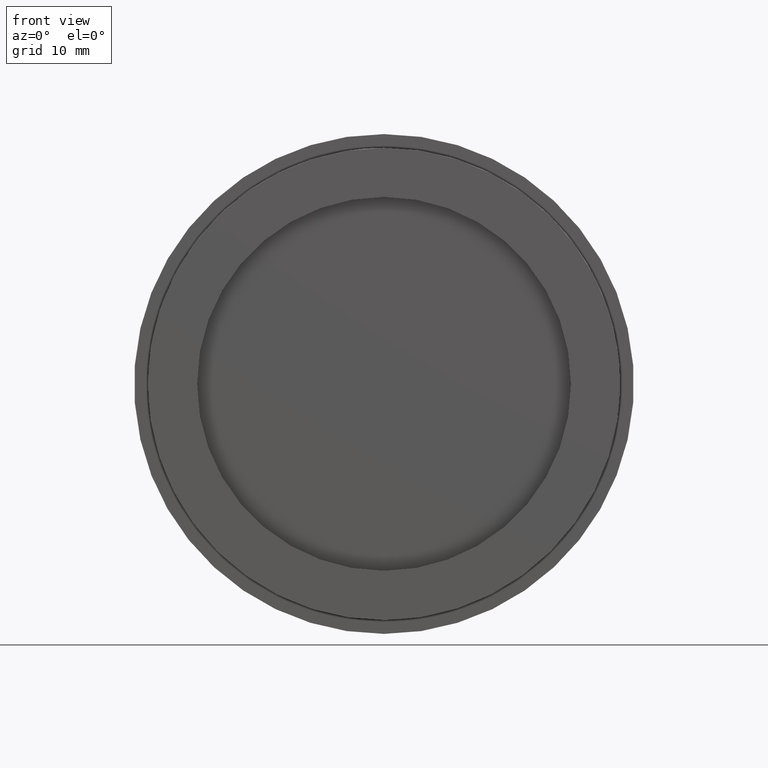
[diagram: clean part render]
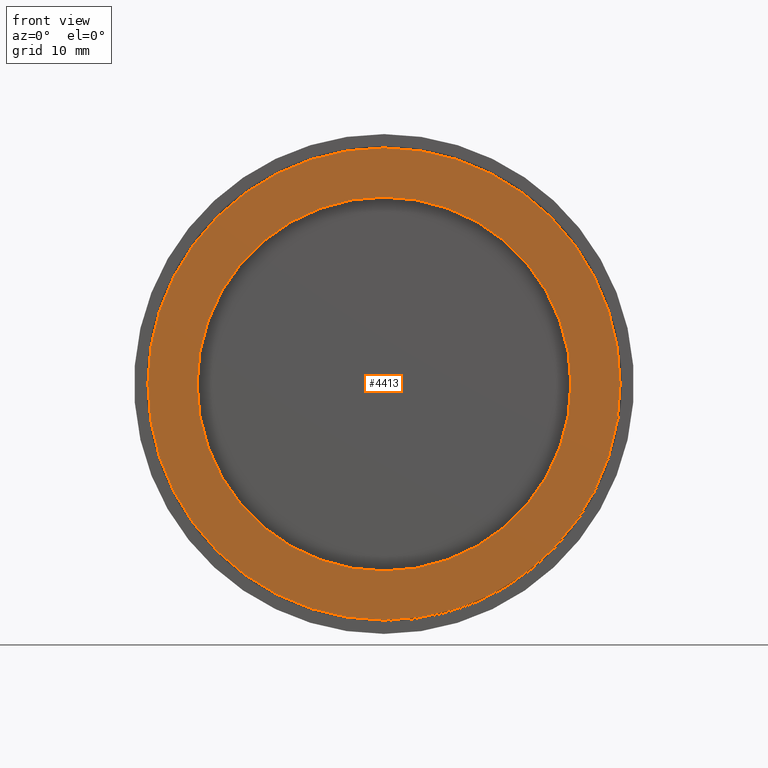
[diagram: same view with one face highlighted and labeled with its STEP entity id]
A machine part, front view. The second image highlights one B-rep face of the part: STEP entity #4413.
In plain terms, the highlighted planar face has unit normal (0, -1, -0).
Its self-contained STEP definition (entity closure, byte-faithful):
#5 = ORIENTED_EDGE ( 'NONE', *, *, #803, .T. ) ;
#189 = DIRECTION ( 'NONE',  ( 0.000000000000000000, 0.000000000000000000, -1.000000000000000000 ) ) ;
#198 = CARTESIAN_POINT ( 'NONE',  ( 24.00000000000000000, 6.123233995736752477E-17, 0.000000000000000000 ) ) ;
#259 = PLANE ( 'NONE',  #3453 ) ;
#679 = CARTESIAN_POINT ( 'NONE',  ( 0.000000000000000000, 3.673940397442059375E-16, 0.000000000000000000 ) ) ;
#770 = EDGE_LOOP ( 'NONE', ( #1231, #1956, #5 ) ) ;
#803 = EDGE_CURVE ( 'NONE', #3264, #4766, #2526, .T. ) ;
#1066 = DIRECTION ( 'NONE',  ( 0.000000000000000000, 0.000000000000000000, -1.000000000000000000 ) ) ;
#1097 = DIRECTION ( 'NONE',  ( -0.000000000000000000, -1.000000000000000000, -0.000000000000000000 ) ) ;
#1166 = CARTESIAN_POINT ( 'NONE',  ( 0.000000000000000000, 3.673940397442059375E-16, 0.000000000000000000 ) ) ;
#1211 = AXIS2_PLACEMENT_3D ( 'NONE', #679, #3588, #1463 ) ;
#1231 = ORIENTED_EDGE ( 'NONE', *, *, #3496, .T. ) ;
#1368 = CIRCLE ( 'NONE', #4960, 19.00000000000000000 ) ;
#1370 = AXIS2_PLACEMENT_3D ( 'NONE', #6235, #2804, #3417 ) ;
#1463 = DIRECTION ( 'NONE',  ( 0.000000000000000000, 0.000000000000000000, -1.000000000000000000 ) ) ;
#1512 = CARTESIAN_POINT ( 'NONE',  ( 0.000000000000000000, -2.449293598294708880E-16, 0.000000000000000000 ) ) ;
#1518 = AXIS2_PLACEMENT_3D ( 'NONE', #5099, #4521, #189 ) ;
#1668 = DIRECTION ( 'NONE',  ( -0.000000000000000000, -1.000000000000000000, -0.000000000000000000 ) ) ;
#1953 = ORIENTED_EDGE ( 'NONE', *, *, #6239, .F. ) ;
#1956 = ORIENTED_EDGE ( 'NONE', *, *, #2523, .T. ) ;
#1988 = VERTEX_POINT ( 'NONE', #2122 ) ;
#2122 = CARTESIAN_POINT ( 'NONE',  ( 2.939152317953647894E-15, 3.673940397442059375E-16, 24.00000000000000000 ) ) ;
#2202 = DIRECTION ( 'NONE',  ( 0.000000000000000000, -1.000000000000000000, -0.000000000000000000 ) ) ;
#2235 = DIRECTION ( 'NONE',  ( 0.000000000000000000, 0.000000000000000000, -1.000000000000000000 ) ) ;
#2488 = CIRCLE ( 'NONE', #1370, 19.00000000000000000 ) ;
#2523 = EDGE_CURVE ( 'NONE', #1988, #3264, #3149, .T. ) ;
#2526 = CIRCLE ( 'NONE', #3371, 24.00000000000000000 ) ;
#2534 = CIRCLE ( 'NONE', #1518, 24.00000000000000000 ) ;
#2716 = CARTESIAN_POINT ( 'NONE',  ( 0.000000000000000000, -2.449293598294708880E-16, -19.00000000000000000 ) ) ;
#2804 = DIRECTION ( 'NONE',  ( -0.000000000000000000, -1.000000000000000000, -0.000000000000000000 ) ) ;
#2848 = CARTESIAN_POINT ( 'NONE',  ( 2.326828918379970970E-15, -2.449293598294708880E-16, 19.00000000000000000 ) ) ;
#2891 = CARTESIAN_POINT ( 'NONE',  ( 0.000000000000000000, 3.673940397442059375E-16, -24.00000000000000000 ) ) ;
#3149 = CIRCLE ( 'NONE', #1211, 24.00000000000000000 ) ;
#3264 = VERTEX_POINT ( 'NONE', #2891 ) ;
#3371 = AXIS2_PLACEMENT_3D ( 'NONE', #1166, #1668, #4421 ) ;
#3417 = DIRECTION ( 'NONE',  ( 0.000000000000000000, 0.000000000000000000, -1.000000000000000000 ) ) ;
#3453 = AXIS2_PLACEMENT_3D ( 'NONE', #198, #2202, #2235 ) ;
#3496 = EDGE_CURVE ( 'NONE', #4766, #1988, #2534, .T. ) ;
#3588 = DIRECTION ( 'NONE',  ( -0.000000000000000000, -1.000000000000000000, -0.000000000000000000 ) ) ;
#3632 = VERTEX_POINT ( 'NONE', #2848 ) ;
#4243 = ORIENTED_EDGE ( 'NONE', *, *, #4844, .F. ) ;
#4367 = VERTEX_POINT ( 'NONE', #2716 ) ;
#4370 = EDGE_LOOP ( 'NONE', ( #1953, #4243 ) ) ;
#4413 = ADVANCED_FACE ( 'NONE', ( #6084, #4558 ), #259, .T. ) ;
#4421 = DIRECTION ( 'NONE',  ( 0.000000000000000000, 0.000000000000000000, -1.000000000000000000 ) ) ;
#4474 = CARTESIAN_POINT ( 'NONE',  ( 24.00000000000000000, 3.673940397442059375E-16, 0.000000000000000000 ) ) ;
#4521 = DIRECTION ( 'NONE',  ( -0.000000000000000000, -1.000000000000000000, -0.000000000000000000 ) ) ;
#4558 = FACE_BOUND ( 'NONE', #4370, .T. ) ;
#4766 = VERTEX_POINT ( 'NONE', #4474 ) ;
#4844 = EDGE_CURVE ( 'NONE', #3632, #4367, #1368, .T. ) ;
#4960 = AXIS2_PLACEMENT_3D ( 'NONE', #1512, #1097, #1066 ) ;
#5099 = CARTESIAN_POINT ( 'NONE',  ( 0.000000000000000000, 3.673940397442059375E-16, 0.000000000000000000 ) ) ;
#6084 = FACE_OUTER_BOUND ( 'NONE', #770, .T. ) ;
#6235 = CARTESIAN_POINT ( 'NONE',  ( 0.000000000000000000, -2.449293598294708880E-16, 0.000000000000000000 ) ) ;
#6239 = EDGE_CURVE ( 'NONE', #4367, #3632, #2488, .T. ) ;